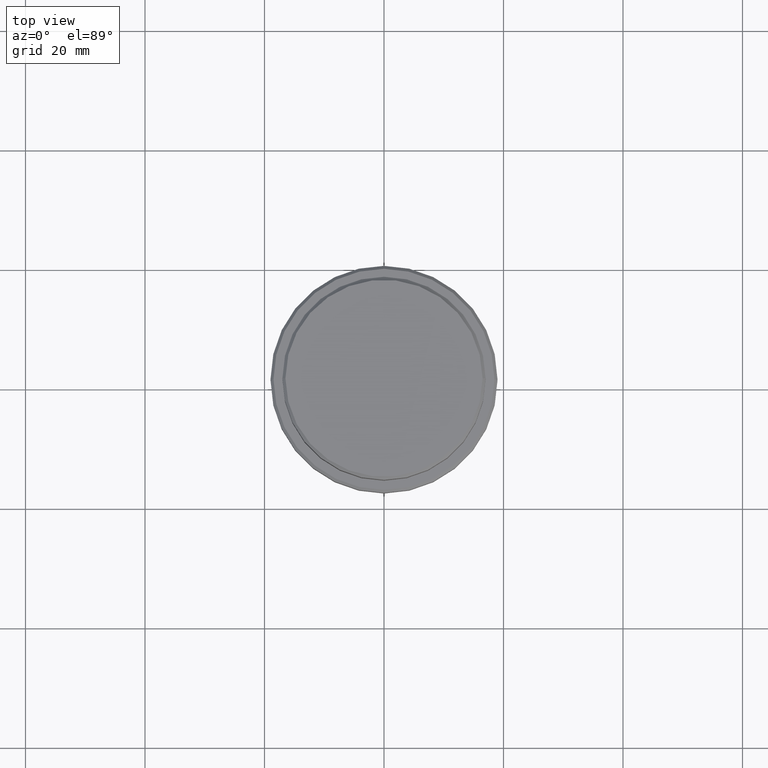
[diagram: clean part render]
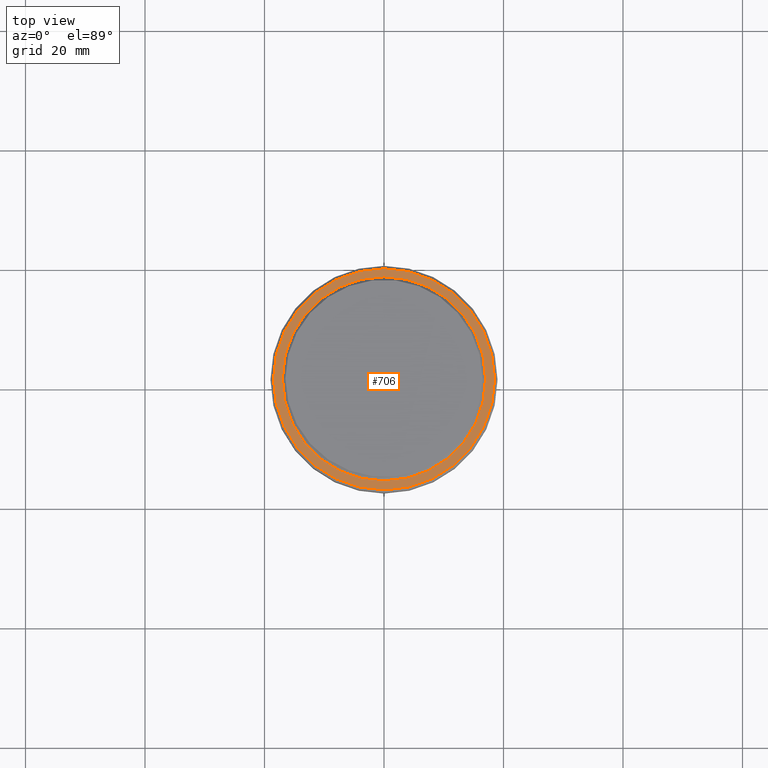
[diagram: same view with one face highlighted and labeled with its STEP entity id]
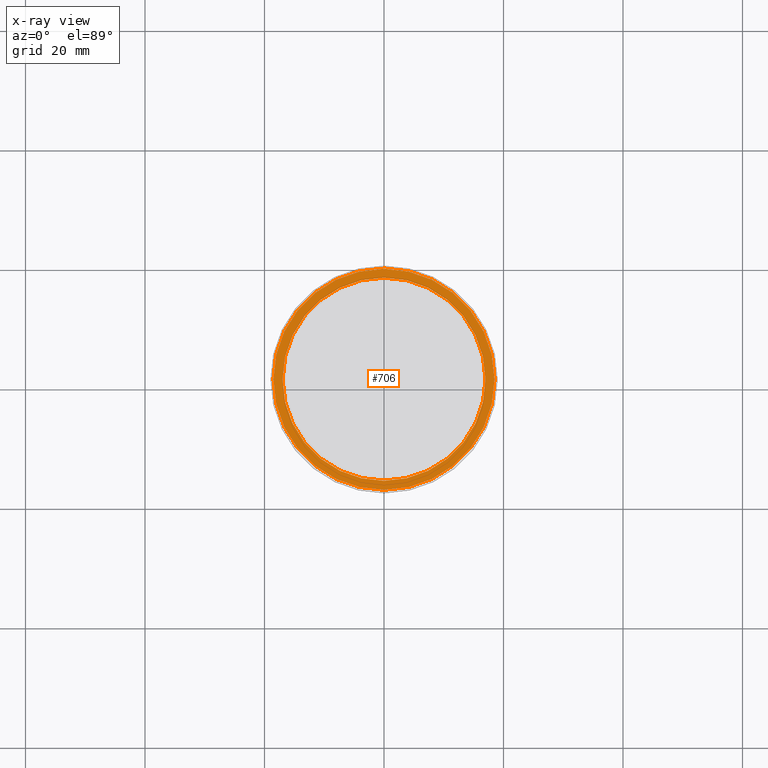
[diagram: x-ray of the same camera — body ghosted, the highlighted face saturated]
A machine part, top view. The second image highlights one B-rep face of the part: STEP entity #706.
The next image is the same camera in x-ray: the body ghosted, the highlighted face saturated — about 0% of this face is hidden behind the body in this view.
In plain terms, the highlighted planar face has unit normal (0, -0, 1).
Its self-contained STEP definition (entity closure, byte-faithful):
#22 = FACE_OUTER_BOUND ( 'NONE', #671, .T. ) ;
#170 = CARTESIAN_POINT ( 'NONE',  ( 0.000000000000000000, 0.000000000000000000, -10.00000000000000178 ) ) ;
#236 = FACE_BOUND ( 'NONE', #486, .T. ) ;
#263 = CIRCLE ( 'NONE', #1398, 16.99999999999998579 ) ;
#332 = CIRCLE ( 'NONE', #360, 18.50000000000001776 ) ;
#360 = AXIS2_PLACEMENT_3D ( 'NONE', #170, #601, #490 ) ;
#369 = CARTESIAN_POINT ( 'NONE',  ( 18.50000000000001776, 2.296212748401287578E-15, -10.00000000000000178 ) ) ;
#373 = ORIENTED_EDGE ( 'NONE', *, *, #717, .T. ) ;
#463 = PLANE ( 'NONE',  #476 ) ;
#476 = AXIS2_PLACEMENT_3D ( 'NONE', #1118, #1230, #1225 ) ;
#486 = EDGE_LOOP ( 'NONE', ( #595, #491 ) ) ;
#490 = DIRECTION ( 'NONE',  ( 1.000000000000000000, 0.000000000000000000, 0.000000000000000000 ) ) ;
#491 = ORIENTED_EDGE ( 'NONE', *, *, #1385, .T. ) ;
#516 = VERTEX_POINT ( 'NONE', #1157 ) ;
#544 = VERTEX_POINT ( 'NONE', #729 ) ;
#547 = VERTEX_POINT ( 'NONE', #1370 ) ;
#550 = DIRECTION ( 'NONE',  ( 1.000000000000000000, 0.000000000000000000, 0.000000000000000000 ) ) ;
#562 = CIRCLE ( 'NONE', #940, 18.50000000000001776 ) ;
#579 = CARTESIAN_POINT ( 'NONE',  ( 0.000000000000000000, 0.000000000000000000, -10.00000000000000178 ) ) ;
#595 = ORIENTED_EDGE ( 'NONE', *, *, #1273, .T. ) ;
#601 = DIRECTION ( 'NONE',  ( -0.000000000000000000, -0.000000000000000000, 1.000000000000000000 ) ) ;
#667 = CARTESIAN_POINT ( 'NONE',  ( 0.000000000000000000, 0.000000000000000000, -10.00000000000000178 ) ) ;
#671 = EDGE_LOOP ( 'NONE', ( #818, #373 ) ) ;
#701 = CARTESIAN_POINT ( 'NONE',  ( 0.000000000000000000, 0.000000000000000000, -10.00000000000000178 ) ) ;
#706 = ADVANCED_FACE ( 'NONE', ( #22, #236 ), #463, .T. ) ;
#714 = VERTEX_POINT ( 'NONE', #369 ) ;
#717 = EDGE_CURVE ( 'NONE', #714, #516, #562, .T. ) ;
#724 = DIRECTION ( 'NONE',  ( 0.000000000000000000, 0.000000000000000000, -1.000000000000000000 ) ) ;
#729 = CARTESIAN_POINT ( 'NONE',  ( 16.99999999999998579, 0.000000000000000000, -10.00000000000000178 ) ) ;
#753 = AXIS2_PLACEMENT_3D ( 'NONE', #701, #1375, #1146 ) ;
#794 = DIRECTION ( 'NONE',  ( -0.000000000000000000, -0.000000000000000000, 1.000000000000000000 ) ) ;
#818 = ORIENTED_EDGE ( 'NONE', *, *, #1302, .T. ) ;
#940 = AXIS2_PLACEMENT_3D ( 'NONE', #667, #794, #550 ) ;
#1118 = CARTESIAN_POINT ( 'NONE',  ( 0.000000000000000000, 16.49999999999998579, -10.00000000000000178 ) ) ;
#1146 = DIRECTION ( 'NONE',  ( 1.000000000000000000, 0.000000000000000000, 0.000000000000000000 ) ) ;
#1157 = CARTESIAN_POINT ( 'NONE',  ( -18.50000000000001776, 0.000000000000000000, -10.00000000000000178 ) ) ;
#1225 = DIRECTION ( 'NONE',  ( 1.000000000000000000, 0.000000000000000000, 0.000000000000000000 ) ) ;
#1230 = DIRECTION ( 'NONE',  ( 0.000000000000000000, -0.000000000000000000, 1.000000000000000000 ) ) ;
#1269 = DIRECTION ( 'NONE',  ( 1.000000000000000000, 0.000000000000000000, 0.000000000000000000 ) ) ;
#1273 = EDGE_CURVE ( 'NONE', #544, #547, #263, .T. ) ;
#1302 = EDGE_CURVE ( 'NONE', #516, #714, #332, .T. ) ;
#1309 = CIRCLE ( 'NONE', #753, 16.99999999999998579 ) ;
#1370 = CARTESIAN_POINT ( 'NONE',  ( -16.99999999999998579, 2.081899558550499096E-15, -10.00000000000000178 ) ) ;
#1375 = DIRECTION ( 'NONE',  ( 0.000000000000000000, 0.000000000000000000, -1.000000000000000000 ) ) ;
#1385 = EDGE_CURVE ( 'NONE', #547, #544, #1309, .T. ) ;
#1398 = AXIS2_PLACEMENT_3D ( 'NONE', #579, #724, #1269 ) ;